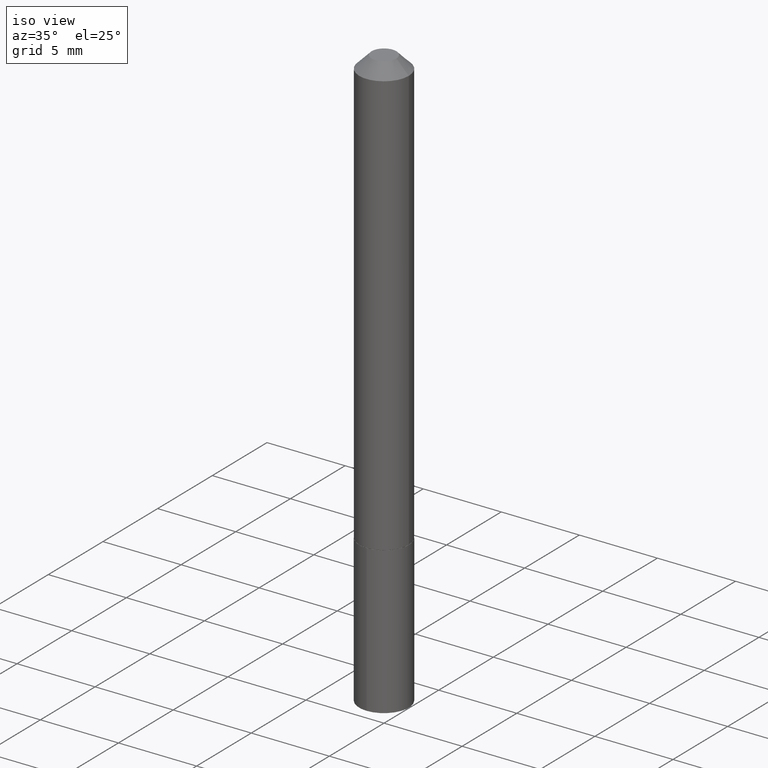
[diagram: clean part render]
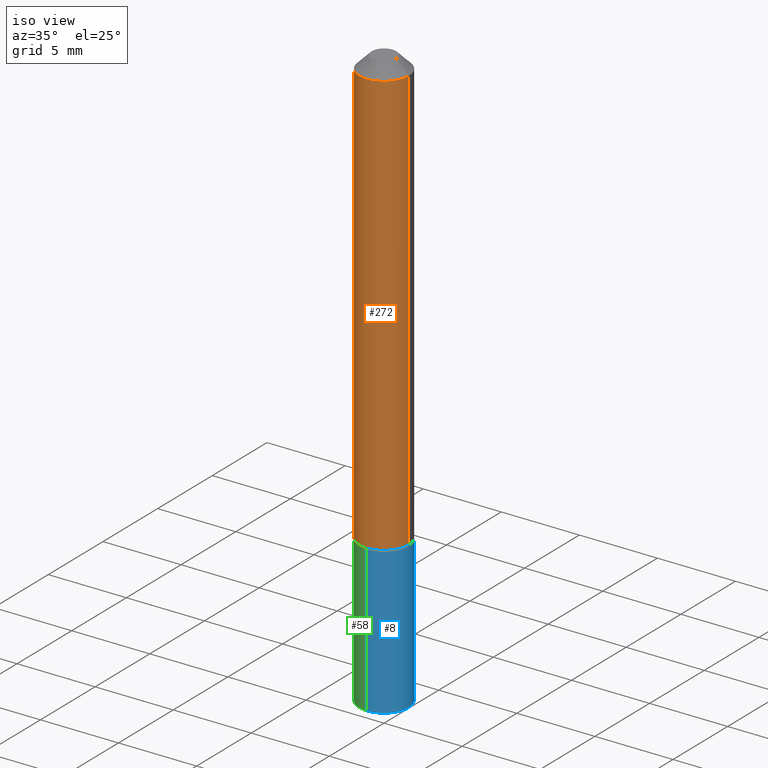
[diagram: same view with three faces highlighted in distinct colors, each labeled with its STEP entity id]
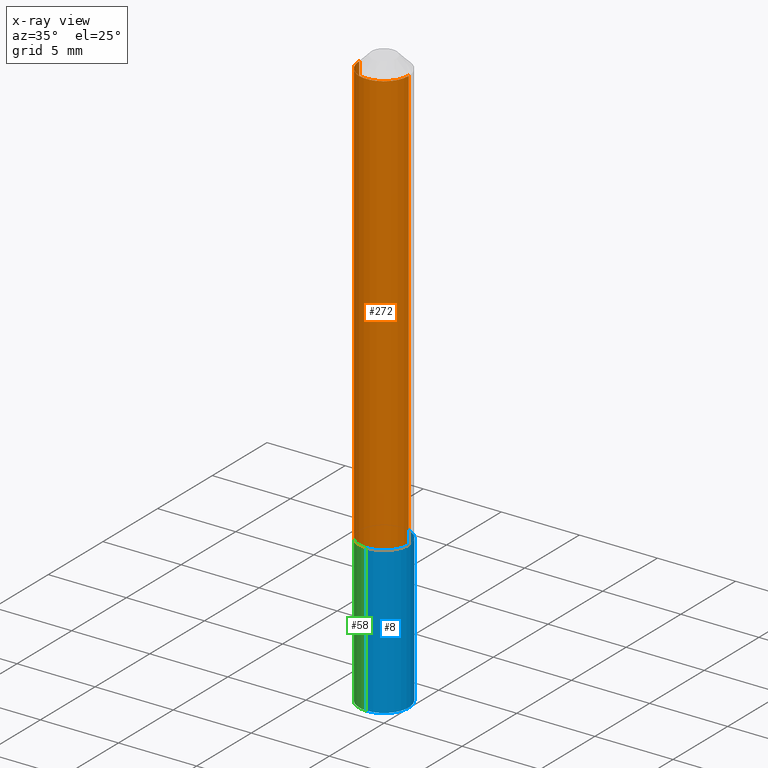
[diagram: x-ray of the same camera — body ghosted, the three highlighted faces saturated]
A machine part, iso view with three faces highlighted in distinct colors.
The next image is the same camera in x-ray (body ghosted, the three faces saturated) — at least one of them is partly hidden behind the body in this view.
Their STEP definitions:

[orange] entity #272 — the highlighted cylindrical surface (edge-blend (fillet) strip) has radius 1.5875 mm, axis along (-0, 0, 1).
#13 = DIRECTION ( 'NONE',  ( -2.445468806185136877E-29, 3.491481338843145188E-15, 1.000000000000000000 ) ) ;
#56 = ORIENTED_EDGE ( 'NONE', *, *, #169, .F. ) ;
#59 = CIRCLE ( 'NONE', #166, 0.06250000000000001388 ) ;
#67 = DIRECTION ( 'NONE',  ( -2.445468806185136597E-29, 3.491481338843145583E-15, 1.000000000000000000 ) ) ;
#69 = DIRECTION ( 'NONE',  ( 1.000000000000000000, -6.982962677686262766E-15, 0.000000000000000000 ) ) ;
#102 = VECTOR ( 'NONE', #13, 39.37007874015748143 ) ;
#105 = CARTESIAN_POINT ( 'NONE',  ( 0.06250000000000006939, -4.364351673553921624E-16, 3.047610484872463374E-30 ) ) ;
#107 = FACE_OUTER_BOUND ( 'NONE', #108, .T. ) ;
#108 = EDGE_LOOP ( 'NONE', ( #323, #194, #240, #56 ) ) ;
#123 = CARTESIAN_POINT ( 'NONE',  ( 7.642090019328601786E-31, -1.091087918388490144E-16, -0.03125000000000020123 ) ) ;
#162 = DIRECTION ( 'NONE',  ( -2.445468806185136597E-29, 3.491481338843145583E-15, 1.000000000000000000 ) ) ;
#166 = AXIS2_PLACEMENT_3D ( 'NONE', #123, #162, #276 ) ;
#168 = AXIS2_PLACEMENT_3D ( 'NONE', #223, #252, #69 ) ;
#169 = EDGE_CURVE ( 'NONE', #377, #366, #59, .T. ) ;
#192 = LINE ( 'NONE', #342, #102 ) ;
#194 = ORIENTED_EDGE ( 'NONE', *, *, #316, .T. ) ;
#223 = CARTESIAN_POINT ( 'NONE',  ( 2.688792952400557567E-29, -3.838883732058038598E-15, -1.099499999999999922 ) ) ;
#229 = CARTESIAN_POINT ( 'NONE',  ( 0.06250000000000013878, -4.275318899413431056E-15, -1.099499999999999922 ) ) ;
#233 = VECTOR ( 'NONE', #249, 39.37007874015748143 ) ;
#240 = ORIENTED_EDGE ( 'NONE', *, *, #299, .T. ) ;
#243 = CIRCLE ( 'NONE', #168, 0.06250000000000013878 ) ;
#249 = DIRECTION ( 'NONE',  ( -2.445468806185136877E-29, 3.491481338843145188E-15, 1.000000000000000000 ) ) ;
#251 = CARTESIAN_POINT ( 'NONE',  ( -0.06250000000000013878, -3.394794522207974798E-15, -1.099499999999999922 ) ) ;
#252 = DIRECTION ( 'NONE',  ( -2.445468806185136597E-29, 3.491481338843145583E-15, 1.000000000000000000 ) ) ;
#255 = DIRECTION ( 'NONE',  ( 1.000000000000000000, -6.982962677686266711E-15, 4.876176775795935793E-29 ) ) ;
#268 = VERTEX_POINT ( 'NONE', #229 ) ;
#272 = ADVANCED_FACE ( 'NONE', ( #107 ), #367, .T. ) ;
#276 = DIRECTION ( 'NONE',  ( 1.000000000000000000, -6.982962677686265922E-15, 0.000000000000000000 ) ) ;
#277 = CARTESIAN_POINT ( 'NONE',  ( 0.000000000000000000, 0.000000000000000000, 0.000000000000000000 ) ) ;
#290 = VERTEX_POINT ( 'NONE', #251 ) ;
#299 = EDGE_CURVE ( 'NONE', #268, #366, #371, .T. ) ;
#312 = EDGE_CURVE ( 'NONE', #290, #377, #192, .T. ) ;
#314 = CARTESIAN_POINT ( 'NONE',  ( -0.06250000000000001388, -1.529907052098379853E-15, -0.03125000000000020123 ) ) ;
#316 = EDGE_CURVE ( 'NONE', #290, #268, #243, .T. ) ;
#323 = ORIENTED_EDGE ( 'NONE', *, *, #312, .F. ) ;
#333 = AXIS2_PLACEMENT_3D ( 'NONE', #277, #67, #255 ) ;
#337 = CARTESIAN_POINT ( 'NONE',  ( 0.06250000000000001388, -5.455439591942407701E-16, -0.03125000000000020123 ) ) ;
#342 = CARTESIAN_POINT ( 'NONE',  ( -0.06250000000000006939, 4.440892098500631092E-16, -3.074334431409319267E-30 ) ) ;
#366 = VERTEX_POINT ( 'NONE', #337 ) ;
#367 = CYLINDRICAL_SURFACE ( 'NONE', #333, 0.06250000000000006939 ) ;
#371 = LINE ( 'NONE', #105, #233 ) ;
#377 = VERTEX_POINT ( 'NONE', #314 ) ;

[blue] entity #8 — the highlighted cylindrical surface (edge-blend (fillet) strip) has radius 1.5875 mm, axis along (-0, 0, 1).
#7 = CARTESIAN_POINT ( 'NONE',  ( 4.440892098500985093E-16, 0.06249999999999485134, -1.470855771365312759 ) ) ;
#8 = ADVANCED_FACE ( 'NONE', ( #114 ), #263, .T. ) ;
#9 = CIRCLE ( 'NONE', #79, 0.06250000000000000000 ) ;
#16 = CARTESIAN_POINT ( 'NONE',  ( -4.364351673553647495E-16, -0.06250000000000384415, -1.099999999999999645 ) ) ;
#42 = VERTEX_POINT ( 'NONE', #187 ) ;
#51 = ORIENTED_EDGE ( 'NONE', *, *, #376, .F. ) ;
#75 = EDGE_CURVE ( 'NONE', #295, #42, #247, .T. ) ;
#79 = AXIS2_PLACEMENT_3D ( 'NONE', #214, #332, #96 ) ;
#96 = DIRECTION ( 'NONE',  ( -6.982962677686265922E-15, -1.000000000000000000, 4.370956789862821150E-15 ) ) ;
#114 = FACE_OUTER_BOUND ( 'NONE', #118, .T. ) ;
#118 = EDGE_LOOP ( 'NONE', ( #321, #230, #209, #51 ) ) ;
#126 = DIRECTION ( 'NONE',  ( -2.445753662447770863E-29, 3.491073408462041832E-15, 1.000000000000000000 ) ) ;
#127 = CARTESIAN_POINT ( 'NONE',  ( 2.690015686803650369E-29, -3.840629472727460101E-15, -1.100000000000000089 ) ) ;
#129 = EDGE_CURVE ( 'NONE', #345, #325, #9, .T. ) ;
#154 = VECTOR ( 'NONE', #257, 39.37007874015748143 ) ;
#155 = EDGE_CURVE ( 'NONE', #325, #42, #242, .T. ) ;
#163 = CARTESIAN_POINT ( 'NONE',  ( -4.364351673553647495E-16, -0.06250000000000384415, -1.099999999999999645 ) ) ;
#173 = LINE ( 'NONE', #16, #154 ) ;
#183 = DIRECTION ( 'NONE',  ( -2.445753662447770863E-29, 3.491073408462041832E-15, 1.000000000000000000 ) ) ;
#187 = CARTESIAN_POINT ( 'NONE',  ( 4.440892098500986079E-16, 0.06249999999999615585, -1.100000000000000311 ) ) ;
#195 = CARTESIAN_POINT ( 'NONE',  ( -4.364351673553555790E-16, -0.06250000000000513478, -1.470855771365312314 ) ) ;
#202 = CARTESIAN_POINT ( 'NONE',  ( 2.690015686803650369E-29, -3.840629472727460101E-15, -1.100000000000000089 ) ) ;
#205 = VECTOR ( 'NONE', #183, 39.37007874015748143 ) ;
#209 = ORIENTED_EDGE ( 'NONE', *, *, #75, .F. ) ;
#213 = DIRECTION ( 'NONE',  ( -6.982962677686265922E-15, -1.000000000000000000, 4.370956789862821150E-15 ) ) ;
#214 = CARTESIAN_POINT ( 'NONE',  ( 3.597037547860256761E-29, -5.135314194515580488E-15, -1.470855771365312537 ) ) ;
#230 = ORIENTED_EDGE ( 'NONE', *, *, #155, .T. ) ;
#235 = DIRECTION ( 'NONE',  ( -6.982962677686265922E-15, -1.000000000000000000, 4.370956789862821150E-15 ) ) ;
#242 = LINE ( 'NONE', #334, #205 ) ;
#247 = CIRCLE ( 'NONE', #273, 0.06250000000000000000 ) ;
#257 = DIRECTION ( 'NONE',  ( -2.445753662447770863E-29, 3.491073408462041832E-15, 1.000000000000000000 ) ) ;
#263 = CYLINDRICAL_SURFACE ( 'NONE', #318, 0.06250000000000000000 ) ;
#273 = AXIS2_PLACEMENT_3D ( 'NONE', #127, #126, #213 ) ;
#295 = VERTEX_POINT ( 'NONE', #163 ) ;
#318 = AXIS2_PLACEMENT_3D ( 'NONE', #202, #383, #235 ) ;
#321 = ORIENTED_EDGE ( 'NONE', *, *, #129, .T. ) ;
#325 = VERTEX_POINT ( 'NONE', #7 ) ;
#332 = DIRECTION ( 'NONE',  ( -2.445753662447770863E-29, 3.491073408462041832E-15, 1.000000000000000000 ) ) ;
#334 = CARTESIAN_POINT ( 'NONE',  ( 4.440892098500894374E-16, 0.06249999999999615585, -1.100000000000000311 ) ) ;
#345 = VERTEX_POINT ( 'NONE', #195 ) ;
#376 = EDGE_CURVE ( 'NONE', #345, #295, #173, .T. ) ;
#383 = DIRECTION ( 'NONE',  ( -2.445753662447770863E-29, 3.491073408462041832E-15, 1.000000000000000000 ) ) ;

[green] entity #58 — the highlighted cylindrical surface (edge-blend (fillet) strip) has radius 1.5875 mm, axis along (-0, 0, 1).
#7 = CARTESIAN_POINT ( 'NONE',  ( 4.440892098500985093E-16, 0.06249999999999485134, -1.470855771365312759 ) ) ;
#16 = CARTESIAN_POINT ( 'NONE',  ( -4.364351673553647495E-16, -0.06250000000000384415, -1.099999999999999645 ) ) ;
#31 = CIRCLE ( 'NONE', #339, 0.06250000000000000000 ) ;
#32 = CARTESIAN_POINT ( 'NONE',  ( 2.690015686803650369E-29, -3.840629472727460101E-15, -1.100000000000000089 ) ) ;
#42 = VERTEX_POINT ( 'NONE', #187 ) ;
#43 = CARTESIAN_POINT ( 'NONE',  ( 3.597037547860256761E-29, -5.135314194515580488E-15, -1.470855771365312537 ) ) ;
#58 = ADVANCED_FACE ( 'NONE', ( #186 ), #159, .T. ) ;
#63 = DIRECTION ( 'NONE',  ( -6.982962677686265922E-15, -1.000000000000000000, 4.370956789862821150E-15 ) ) ;
#80 = ORIENTED_EDGE ( 'NONE', *, *, #376, .T. ) ;
#87 = EDGE_CURVE ( 'NONE', #42, #295, #137, .T. ) ;
#88 = ORIENTED_EDGE ( 'NONE', *, *, #155, .F. ) ;
#116 = ORIENTED_EDGE ( 'NONE', *, *, #354, .T. ) ;
#128 = DIRECTION ( 'NONE',  ( -2.445753662447770863E-29, 3.491073408462041832E-15, 1.000000000000000000 ) ) ;
#133 = EDGE_LOOP ( 'NONE', ( #88, #116, #80, #352 ) ) ;
#137 = CIRCLE ( 'NONE', #389, 0.06250000000000000000 ) ;
#154 = VECTOR ( 'NONE', #257, 39.37007874015748143 ) ;
#155 = EDGE_CURVE ( 'NONE', #325, #42, #242, .T. ) ;
#159 = CYLINDRICAL_SURFACE ( 'NONE', #179, 0.06250000000000000000 ) ;
#163 = CARTESIAN_POINT ( 'NONE',  ( -4.364351673553647495E-16, -0.06250000000000384415, -1.099999999999999645 ) ) ;
#173 = LINE ( 'NONE', #16, #154 ) ;
#179 = AXIS2_PLACEMENT_3D ( 'NONE', #245, #302, #63 ) ;
#183 = DIRECTION ( 'NONE',  ( -2.445753662447770863E-29, 3.491073408462041832E-15, 1.000000000000000000 ) ) ;
#186 = FACE_OUTER_BOUND ( 'NONE', #133, .T. ) ;
#187 = CARTESIAN_POINT ( 'NONE',  ( 4.440892098500986079E-16, 0.06249999999999615585, -1.100000000000000311 ) ) ;
#195 = CARTESIAN_POINT ( 'NONE',  ( -4.364351673553555790E-16, -0.06250000000000513478, -1.470855771365312314 ) ) ;
#205 = VECTOR ( 'NONE', #183, 39.37007874015748143 ) ;
#222 = DIRECTION ( 'NONE',  ( -6.982962677686265922E-15, -1.000000000000000000, 4.370956789862821150E-15 ) ) ;
#242 = LINE ( 'NONE', #334, #205 ) ;
#245 = CARTESIAN_POINT ( 'NONE',  ( 2.690015686803650369E-29, -3.840629472727460101E-15, -1.100000000000000089 ) ) ;
#257 = DIRECTION ( 'NONE',  ( -2.445753662447770863E-29, 3.491073408462041832E-15, 1.000000000000000000 ) ) ;
#271 = DIRECTION ( 'NONE',  ( -6.982962677686265922E-15, -1.000000000000000000, 4.370956789862821150E-15 ) ) ;
#295 = VERTEX_POINT ( 'NONE', #163 ) ;
#302 = DIRECTION ( 'NONE',  ( -2.445753662447770863E-29, 3.491073408462041832E-15, 1.000000000000000000 ) ) ;
#325 = VERTEX_POINT ( 'NONE', #7 ) ;
#334 = CARTESIAN_POINT ( 'NONE',  ( 4.440892098500894374E-16, 0.06249999999999615585, -1.100000000000000311 ) ) ;
#339 = AXIS2_PLACEMENT_3D ( 'NONE', #43, #365, #222 ) ;
#345 = VERTEX_POINT ( 'NONE', #195 ) ;
#352 = ORIENTED_EDGE ( 'NONE', *, *, #87, .F. ) ;
#354 = EDGE_CURVE ( 'NONE', #325, #345, #31, .T. ) ;
#365 = DIRECTION ( 'NONE',  ( -2.445753662447770863E-29, 3.491073408462041832E-15, 1.000000000000000000 ) ) ;
#376 = EDGE_CURVE ( 'NONE', #345, #295, #173, .T. ) ;
#389 = AXIS2_PLACEMENT_3D ( 'NONE', #32, #128, #271 ) ;